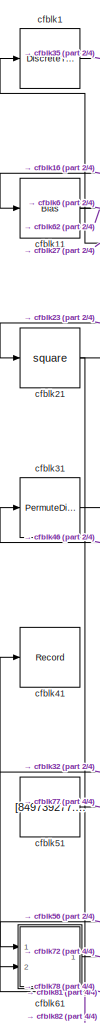
[diagram: root canvas - part 1/4, left side, full height]
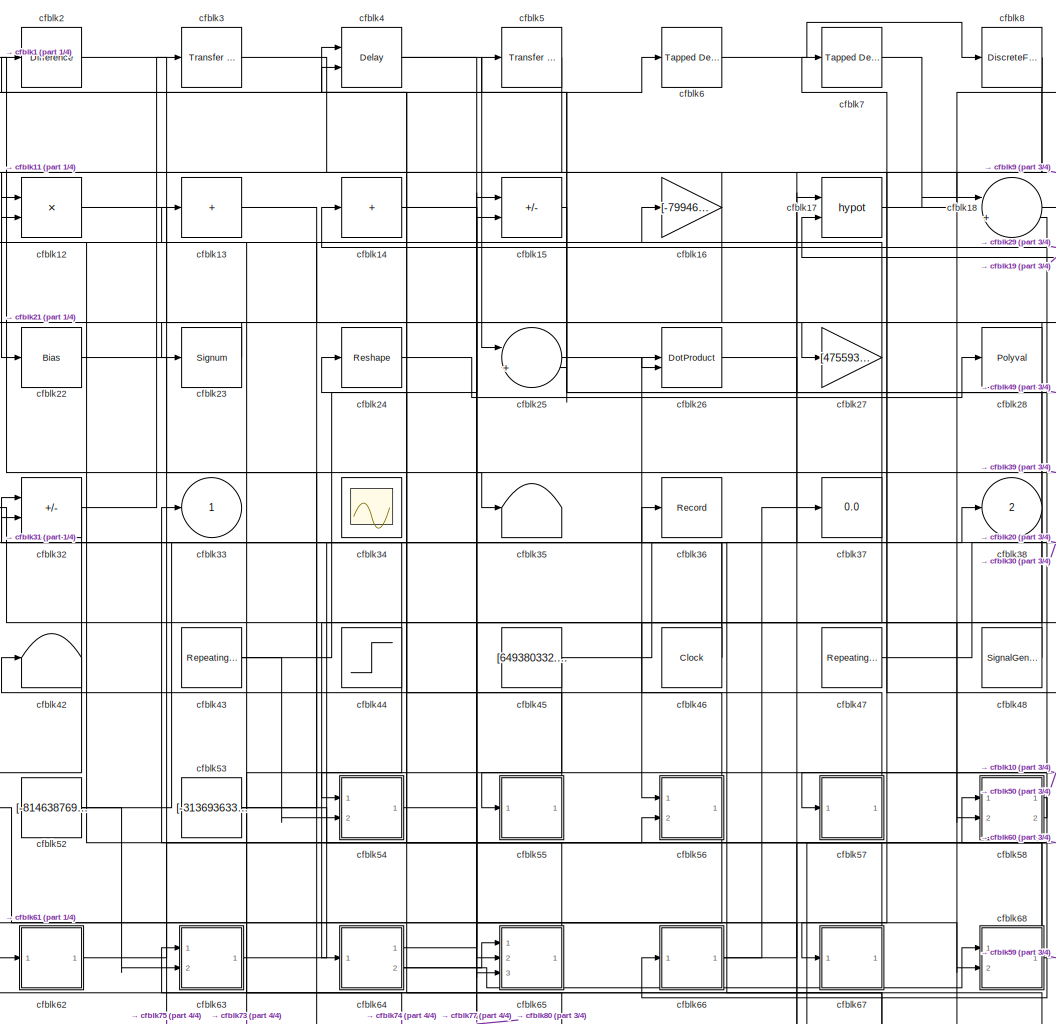
[diagram: root canvas - part 2/4, center side, full height]
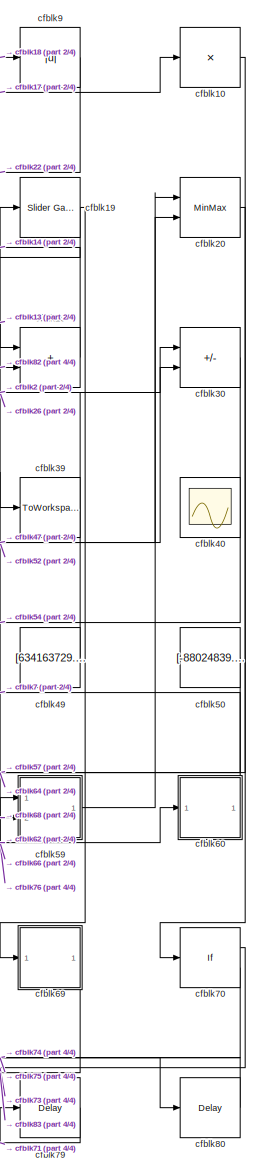
[diagram: root canvas - part 3/4, right side, full height]
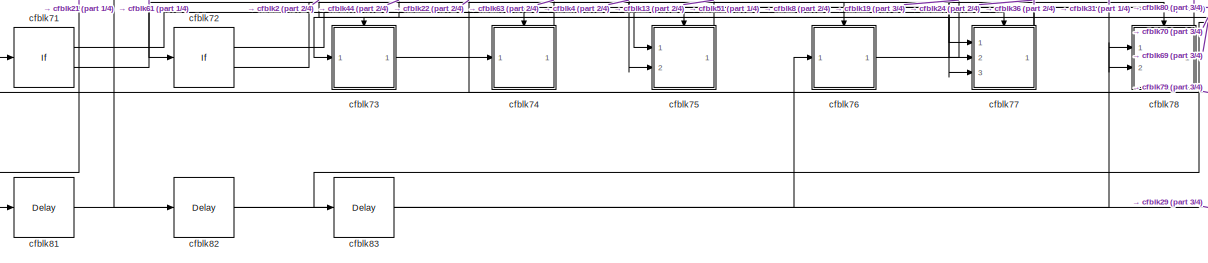
[diagram: root canvas - part 4/4, full width, bottom band]
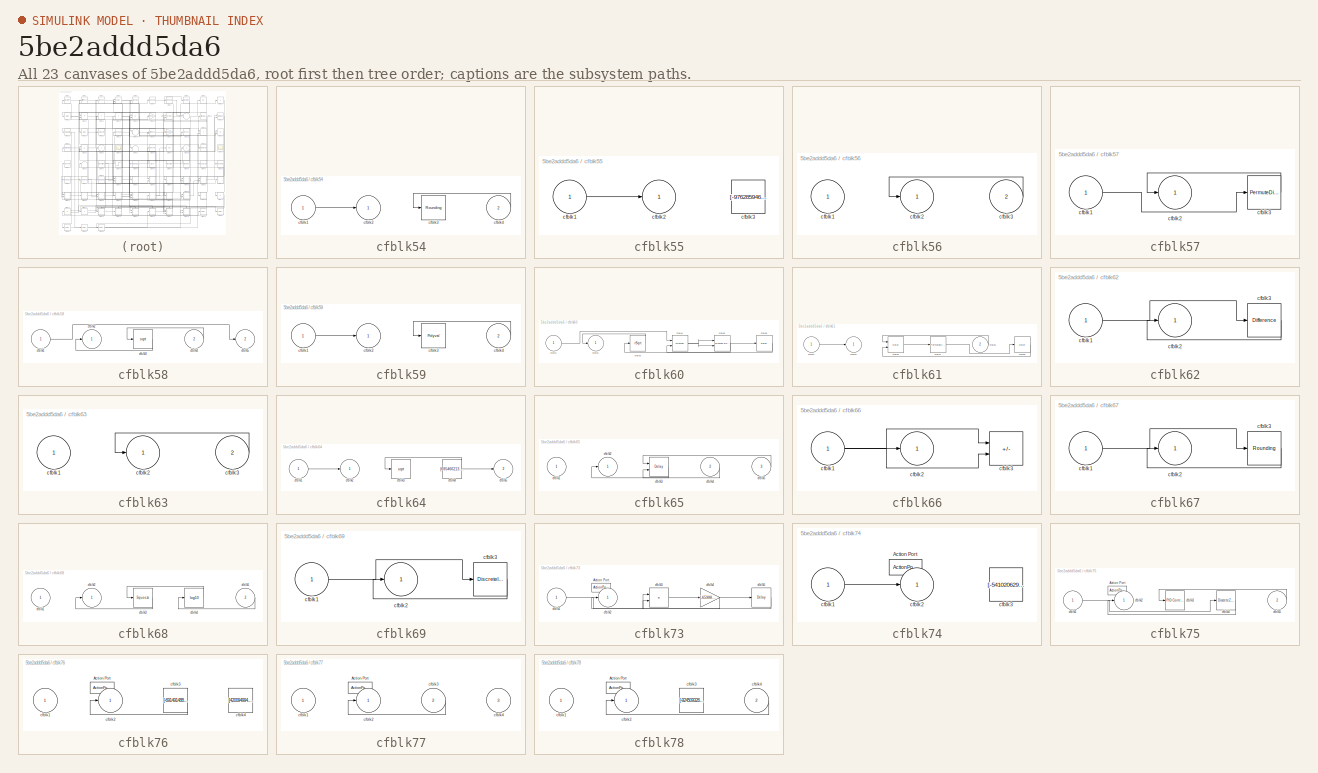
[diagram: thumbnail index - all 23 canvases of the model, root first then tree order]
MODEL slx_5be2addd5da6
KIND model
CONFIG AbsTol = auto
CONFIG EnableMultiTasking = off
CONFIG FixedStep = auto
CONFIG MaxStep = auto
CONFIG MinStep = auto
CONFIG RelTol = 1e-3
CONFIG SampleTimeConstraint = Unconstrained
CONFIG SolverName = VariableStepAuto
CONFIG StartTime = 0.0
CONFIG StopTime = 10.0
BLOCK [DiscreteTransferFcn] cfblk1
  InputPortMap = u0
  Ports = [1, 1]
  SampleTime = 1
BLOCK [Product] cfblk10
  Inputs = *
  Ports = [1, 1]
BLOCK [Bias] cfblk11
  Bias = [181795542.426369]
  SaturateOnIntegerOverflow = off
BLOCK [Product] cfblk12
  Inputs = **
  Ports = [2, 1]
BLOCK [Sum] cfblk13
  IconShape = rectangular
  Inputs = +
  Ports = [1, 1]
BLOCK [Sum] cfblk14
  IconShape = rectangular
  Inputs = +
  Ports = [1, 1]
BLOCK [Sum] cfblk15
  IconShape = rectangular
  Inputs = --
  Ports = [2, 1]
BLOCK [Gain] cfblk16
  Gain = [-799465220.667047]
BLOCK [Math] cfblk17
  Operator = hypot
  Ports = [2, 1]
BLOCK [Sum] cfblk18
  Inputs = |++
  Ports = [2, 1]
BLOCK [Reference] cfblk19  REF=simulink/Math
Operations/Slider
Gain
  Ports = [1, 1]
  SourceBlock = simulink/Math\nOperations/Slider\nGain
  SourceProductBaseCode = SL
  SourceType = Slider Gain
BLOCK [Reference] cfblk2  REF=simulink/Discrete/Difference
  Ports = [1, 1]
  SourceBlock = simulink/Discrete/Difference
  SourceProductBaseCode = SL
  SourceType = Difference
BLOCK [MinMax] cfblk20
  Function = max
  Inputs = 2
  Ports = [2, 1]
BLOCK [Math] cfblk21
  Operator = square
  Ports = [1, 1]
BLOCK [Bias] cfblk22
  Bias = [963864402.264012]
  SaturateOnIntegerOverflow = off
BLOCK [Signum] cfblk23
BLOCK [Reshape] cfblk24
  Ports = [1, 1]
BLOCK [Sum] cfblk25
  Inputs = |++
  Ports = [2, 1]
BLOCK [DotProduct] cfblk26
  OutDataTypeStr = Inherit: Inherit via internal rule
BLOCK [Gain] cfblk27
  Gain = [475593139.416819]
BLOCK [Polyval] cfblk28
  Coefs = [ +2.081618890e-019, -1.441693666e-014, +4.719686976e-010, -8.536869453e-006, +1.621573104e-001, -8.087801117e+001 ]
BLOCK [Sum] cfblk29
  IconShape = rectangular
  Ports = [2, 1]
BLOCK [Reference] cfblk3  REF=simulink/Discrete/Transfer Fcn
First Order
  Ports = [1, 1]
  SourceBlock = simulink/Discrete/Transfer Fcn\nFirst Order
  SourceProductBaseCode = SL
  SourceType = First Order Transfer Fcn
BLOCK [Sum] cfblk30
  IconShape = rectangular
  Inputs = +-
  Ports = [2, 1]
BLOCK [PermuteDimensions] cfblk31
BLOCK [Sum] cfblk32
  IconShape = rectangular
  Inputs = +-
  Ports = [2, 1]
BLOCK [Outport] cfblk33
BLOCK [Scope] cfblk34
  Floating = on
  NumInputPorts = 1
  Ports = []
BLOCK [Terminator] cfblk35
BLOCK [Record] cfblk36
  FileSettingsInternal = {"entries":[{"content":{"excelSettings":{"content":{},"type":"Streamout.ExcelSettings"}},"type":"Streamout.FileSettingStorage","uuid":"2fe2889c-804a-4648-bb93-64e9664d122d"}],"packageUris":["http://schema.mathworks.com/mf0/streamout_blocks/R2020a"],"version":"1.0"}
  Ports = [1]
  SignalsInternal = {"entries":[{"content":{"signals":[{"content":{"blockPath":["sampleModel179/cfblk36"],"channel":[],"dimensions":[1],"domain":"sampleModel179/cfblk36","lineColor":"#ff13a6","plots":[1],"port":1,"sid":[""],"signalID":6697,"signalName":"cfblk77"},"type":"RecordBlkView.Signal","uuid":"7f344007-fab9-4968-983a-89d047d2587d"}]},"type":"RecordBlkView.InputSignals","uuid":"faf1bb9f-562f-42bd-8fab-4d369fa96...<+97ch>
  VisualizationBindings = {"sparklinesplugin":{"info":[{"bindingParametersList":[],"subplotID":1}]}}
BLOCK [Display] cfblk37
  Decimation = 1
  Ports = [1]
BLOCK [Outport] cfblk38
  Port = 2
BLOCK [ToWorkspace] cfblk39
  FixptAsFi = on
  MaxDataPoints = inf
  Ports = [1]
  SampleTime = -1
  SaveFormat = Timeseries
  VariableName = gwrujfk
BLOCK [Delay] cfblk4
  DelayLengthSource = Input port
  InputPortMap = u0,p1
  Ports = [2, 1]
  SampleTime = 1
BLOCK [Scope] cfblk40
  Floating = on
  NumInputPorts = 1
  Ports = []
BLOCK [Record] cfblk41
  FileSettingsInternal = {"entries":[{"content":{"excelSettings":{"content":{},"type":"Streamout.ExcelSettings"}},"type":"Streamout.FileSettingStorage","uuid":"5e3a910e-3505-4596-9b85-21d1496942e4"}],"packageUris":["http://schema.mathworks.com/mf0/streamout_blocks/R2020a"],"version":"1.0"}
  Ports = [1]
  SignalsInternal = {"entries":[{"content":{"signals":[{"content":{"blockPath":["sampleModel179/cfblk41"],"channel":[],"dimensions":[1,1],"domain":"sampleModel179/cfblk41","lineColor":"#fe330a","plots":[1],"port":1,"sid":[""],"signalID":6701,"signalName":"cfblk78"},"type":"RecordBlkView.Signal","uuid":"4bde34a3-be9b-4ccf-99bc-c358328e6481"}]},"type":"RecordBlkView.InputSignals","uuid":"60437584-c26f-4991-91f2-ff35db6...<+99ch>
  VisualizationBindings = {"sparklinesplugin":{"info":[{"bindingParametersList":[],"subplotID":1}]}}
BLOCK [Terminator] cfblk42
BLOCK [Reference] cfblk43  REF=simulink/Sources/Repeating
Sequence
  Ports = [0, 1]
  SourceBlock = simulink/Sources/Repeating\nSequence
  SourceProductBaseCode = SL
  SourceType = Repeating table
BLOCK [Step] cfblk44
  After = [399744739.376699]
  Before = [50738360.582872]
  SampleTime = 0
  Time = [32.000000]
BLOCK [Constant] cfblk45
  SampleTime = 1
  Value = [649380332.512729]
BLOCK [Clock] cfblk46
BLOCK [Reference] cfblk47  REF=simulink/Sources/Repeating
Sequence
Interpolated
  Ports = [0, 1]
  SourceBlock = simulink/Sources/Repeating\nSequence\nInterpolated
  SourceProductBaseCode = SL
  SourceType = Repeating Sequence Interpolated
BLOCK [SignalGenerator] cfblk48
  Amplitude = [-944307267.684464]
  Ports = [0, 1]
  Units = rad/sec
  WaveForm = sawtooth
BLOCK [Constant] cfblk49
  SampleTime = 1
  Value = [634163729.745632]
BLOCK [Reference] cfblk5  REF=simulink/Discrete/Transfer Fcn
Lead or Lag
  Ports = [1, 1]
  SourceBlock = simulink/Discrete/Transfer Fcn\nLead or Lag
  SourceProductBaseCode = SL
  SourceType = Lead or Lag Compensator
BLOCK [Constant] cfblk50
  SampleTime = 1
  Value = [-88024839.080459]
BLOCK [Constant] cfblk51
  SampleTime = 1
  Value = [849739277.065495]
BLOCK [Constant] cfblk52
  SampleTime = 1
  Value = [-814638769.633098]
BLOCK [Constant] cfblk53
  SampleTime = 1
  Value = [-313693633.993269]
BLOCK [SubSystem] cfblk54
  Ports = [2, 1]
  RequestExecContextInheritance = off
BLOCK [Inport] cfblk54/cfblk1
BLOCK [Outport] cfblk54/cfblk2
BLOCK [Rounding] cfblk54/cfblk3
BLOCK [Inport] cfblk54/cfblk4
  Port = 2
BLOCK [SubSystem] cfblk55
  Ports = [1, 1]
  RequestExecContextInheritance = off
BLOCK [Inport] cfblk55/cfblk1
BLOCK [Outport] cfblk55/cfblk2
BLOCK [Constant] cfblk55/cfblk3
  SampleTime = 1
  Value = [-976285946.988395]
BLOCK [SubSystem] cfblk56
  Ports = [2, 1]
  RequestExecContextInheritance = off
BLOCK [Inport] cfblk56/cfblk1
BLOCK [Outport] cfblk56/cfblk2
BLOCK [Inport] cfblk56/cfblk3
  Port = 2
BLOCK [SubSystem] cfblk57
  Ports = [1, 1]
  RequestExecContextInheritance = off
BLOCK [Inport] cfblk57/cfblk1
BLOCK [Outport] cfblk57/cfblk2
BLOCK [PermuteDimensions] cfblk57/cfblk3
BLOCK [SubSystem] cfblk58
  Ports = [2, 2]
  RequestExecContextInheritance = off
BLOCK [Inport] cfblk58/cfblk1
BLOCK [Outport] cfblk58/cfblk2
BLOCK [Sqrt] cfblk58/cfblk3
BLOCK [Inport] cfblk58/cfblk4
  Port = 2
BLOCK [Outport] cfblk58/cfblk5
  Port = 2
BLOCK [SubSystem] cfblk59
  Ports = [2, 1]
  RequestExecContextInheritance = off
BLOCK [Inport] cfblk59/cfblk1
BLOCK [Outport] cfblk59/cfblk2
BLOCK [Polyval] cfblk59/cfblk3
  Coefs = [ +2.081618890e-019, -1.441693666e-014, +4.719686976e-010, -8.536869453e-006, +1.621573104e-001, -8.087801117e+001 ]
BLOCK [Inport] cfblk59/cfblk4
  Port = 2
BLOCK [Reference] cfblk6  REF=simulink/Discrete/Tapped Delay
  Ports = [1, 1]
  SourceBlock = simulink/Discrete/Tapped Delay
  SourceProductBaseCode = SL
  SourceType = Tapped Delay Line
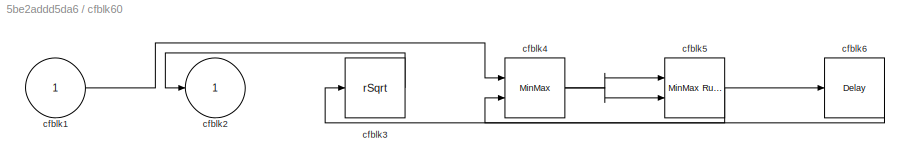
BLOCK [SubSystem] cfblk60
  Ports = [1, 1]
  RequestExecContextInheritance = off
BLOCK [Inport] cfblk60/cfblk1
BLOCK [Outport] cfblk60/cfblk2
BLOCK [Sqrt] cfblk60/cfblk3
  AlgorithmType = Newton-Raphson
  Operator = rSqrt
BLOCK [MinMax] cfblk60/cfblk4
  Inputs = 2
  Ports = [2, 1]
BLOCK [Reference] cfblk60/cfblk5  REF=simulink/Math
Operations/MinMax
Running
Resettable
  Ports = [2, 1]
  SourceBlock = simulink/Math\nOperations/MinMax\nRunning\nResettable
  SourceProductBaseCode = SL
  SourceType = MinMax Running Resettable
BLOCK [Delay] cfblk60/cfblk6
  InputPortMap = u0
  Ports = [1, 1]
  SampleTime = 1
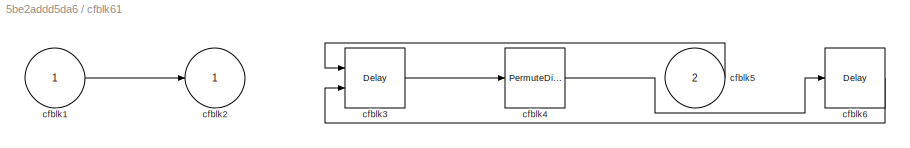
BLOCK [SubSystem] cfblk61
  Ports = [2, 1]
  RequestExecContextInheritance = off
BLOCK [Inport] cfblk61/cfblk1
BLOCK [Outport] cfblk61/cfblk2
BLOCK [Delay] cfblk61/cfblk3
  DelayLengthSource = Input port
  InputPortMap = u0,p1
  Ports = [2, 1]
  SampleTime = 1
BLOCK [PermuteDimensions] cfblk61/cfblk4
BLOCK [Inport] cfblk61/cfblk5
  Port = 2
BLOCK [Delay] cfblk61/cfblk6
  InputPortMap = u0
  Ports = [1, 1]
  SampleTime = 1
BLOCK [SubSystem] cfblk62
  Ports = [1, 1]
  RequestExecContextInheritance = off
BLOCK [Inport] cfblk62/cfblk1
BLOCK [Outport] cfblk62/cfblk2
BLOCK [Reference] cfblk62/cfblk3  REF=simulink/Discrete/Difference
  Ports = [1, 1]
  SourceBlock = simulink/Discrete/Difference
  SourceProductBaseCode = SL
  SourceType = Difference
BLOCK [SubSystem] cfblk63
  Ports = [2, 1]
  RequestExecContextInheritance = off
BLOCK [Inport] cfblk63/cfblk1
BLOCK [Outport] cfblk63/cfblk2
BLOCK [Inport] cfblk63/cfblk3
  Port = 2
BLOCK [SubSystem] cfblk64
  Ports = [1, 2]
  RequestExecContextInheritance = off
BLOCK [Inport] cfblk64/cfblk1
BLOCK [Outport] cfblk64/cfblk2
BLOCK [Sqrt] cfblk64/cfblk3
BLOCK [Constant] cfblk64/cfblk4
  SampleTime = 1
  Value = [695466213.768835]
BLOCK [Outport] cfblk64/cfblk5
  Port = 2
BLOCK [SubSystem] cfblk65
  Ports = [3, 1]
  RequestExecContextInheritance = off
BLOCK [Inport] cfblk65/cfblk1
BLOCK [Outport] cfblk65/cfblk2
BLOCK [Delay] cfblk65/cfblk3
  InputPortMap = u0,e6
  Ports = [2, 1]
  SampleTime = 1
  ShowEnablePort = on
BLOCK [Inport] cfblk65/cfblk4
  Port = 2
BLOCK [Inport] cfblk65/cfblk5
  Port = 3
BLOCK [SubSystem] cfblk66
  Ports = [1, 1]
  RequestExecContextInheritance = off
BLOCK [Inport] cfblk66/cfblk1
BLOCK [Outport] cfblk66/cfblk2
BLOCK [Sum] cfblk66/cfblk3
  IconShape = rectangular
  Inputs = +-
  Ports = [2, 1]
BLOCK [SubSystem] cfblk67
  Ports = [1, 1]
  RequestExecContextInheritance = off
BLOCK [Inport] cfblk67/cfblk1
BLOCK [Outport] cfblk67/cfblk2
BLOCK [Rounding] cfblk67/cfblk3
BLOCK [SubSystem] cfblk68
  Ports = [2, 1]
  RequestExecContextInheritance = off
BLOCK [Inport] cfblk68/cfblk1
BLOCK [Outport] cfblk68/cfblk2
BLOCK [Squeeze] cfblk68/cfblk3
BLOCK [Math] cfblk68/cfblk4
  Operator = log10
  Ports = [1, 1]
BLOCK [Inport] cfblk68/cfblk5
  Port = 2
BLOCK [SubSystem] cfblk69
  Ports = [1, 1]
  RequestExecContextInheritance = off
BLOCK [Inport] cfblk69/cfblk1
BLOCK [Outport] cfblk69/cfblk2
BLOCK [DiscreteIntegrator] cfblk69/cfblk3
  ICPrevOutput = DiscIntNeverNeededParam
  ICPrevScaledInput = DiscIntNeverNeededParam
  InitialConditionSetting = Auto
  Ports = [1, 1]
BLOCK [Reference] cfblk7  REF=simulink/Discrete/Tapped Delay
  Ports = [1, 1]
  SourceBlock = simulink/Discrete/Tapped Delay
  SourceProductBaseCode = SL
  SourceType = Tapped Delay Line
BLOCK [If] cfblk70
  IfExpression = u1 >= 0
  Ports = [1, 2]
  SampleTime = 1
BLOCK [If] cfblk71
  IfExpression = u1 >= 0
  Ports = [1, 2]
  SampleTime = 1
BLOCK [If] cfblk72
  IfExpression = u1 >= 0
  Ports = [1, 2]
  SampleTime = 1
BLOCK [SubSystem] cfblk73
  Ports = [1, 1, 0, 0, 0, 0, 0, 1]
  RequestExecContextInheritance = off
  TreatAsAtomicUnit = on
BLOCK [ActionPort] cfblk73/Action Port
  ActionPortLabel = if(u1 >= 0)
BLOCK [Inport] cfblk73/cfblk1
BLOCK [Outport] cfblk73/cfblk2
BLOCK [Product] cfblk73/cfblk3
  Ports = [2, 1]
BLOCK [Gain] cfblk73/cfblk4
  Gain = [-659885936.781840]
BLOCK [Delay] cfblk73/cfblk5
  InputPortMap = u0
  Ports = [1, 1]
BLOCK [SubSystem] cfblk74
  Ports = [1, 1, 0, 0, 0, 0, 0, 1]
  RequestExecContextInheritance = off
  TreatAsAtomicUnit = on
BLOCK [ActionPort] cfblk74/Action Port
  ActionPortLabel = else
BLOCK [Inport] cfblk74/cfblk1
BLOCK [Outport] cfblk74/cfblk2
BLOCK [Constant] cfblk74/cfblk3
  SampleTime = 1
  Value = [-541020629.266397]
BLOCK [SubSystem] cfblk75
  Ports = [2, 1, 0, 0, 0, 0, 0, 1]
  RequestExecContextInheritance = off
  TreatAsAtomicUnit = on
BLOCK [ActionPort] cfblk75/Action Port
  ActionPortLabel = if(u1 >= 0)
BLOCK [Inport] cfblk75/cfblk1
BLOCK [Outport] cfblk75/cfblk2
BLOCK [Reference] cfblk75/cfblk3  REF=slpidlib/PID Controller
  Ports = [1, 1]
  SourceBlock = slpidlib/PID Controller
  SourceProductBaseCode = SL
  SourceType = PID 1dof
BLOCK [DiscreteZeroPole] cfblk75/cfblk4
  Gain = 1
  Poles = [0 0.5]
  SampleTime = -1
BLOCK [Inport] cfblk75/cfblk5
  Port = 2
BLOCK [SubSystem] cfblk76
  Ports = [1, 1, 0, 0, 0, 0, 0, 1]
  RequestExecContextInheritance = off
  TreatAsAtomicUnit = on
BLOCK [ActionPort] cfblk76/Action Port
  ActionPortLabel = else
BLOCK [Inport] cfblk76/cfblk1
BLOCK [Outport] cfblk76/cfblk2
BLOCK [Constant] cfblk76/cfblk3
  SampleTime = 1
  Value = [-691491488.937067]
BLOCK [Constant] cfblk76/cfblk4
  SampleTime = 1
  Value = [420094994.810279]
BLOCK [SubSystem] cfblk77
  Ports = [3, 1, 0, 0, 0, 0, 0, 1]
  RequestExecContextInheritance = off
  TreatAsAtomicUnit = on
BLOCK [ActionPort] cfblk77/Action Port
  ActionPortLabel = if(u1 >= 0)
BLOCK [Inport] cfblk77/cfblk1
BLOCK [Outport] cfblk77/cfblk2
BLOCK [Inport] cfblk77/cfblk3
  Port = 2
BLOCK [Inport] cfblk77/cfblk4
  Port = 3
BLOCK [SubSystem] cfblk78
  Ports = [2, 1, 0, 0, 0, 0, 0, 1]
  RequestExecContextInheritance = off
  TreatAsAtomicUnit = on
BLOCK [ActionPort] cfblk78/Action Port
  ActionPortLabel = else
BLOCK [Inport] cfblk78/cfblk1
BLOCK [Outport] cfblk78/cfblk2
BLOCK [Constant] cfblk78/cfblk3
  SampleTime = 1
  Value = [-924509326.681808]
BLOCK [Inport] cfblk78/cfblk4
  Port = 2
BLOCK [Delay] cfblk79
  InputPortMap = u0
  Ports = [1, 1]
  SampleTime = 1
BLOCK [DiscreteFilter] cfblk8
  InputPortMap = u0
  Ports = [1, 1]
  SampleTime = 1
BLOCK [Delay] cfblk80
  InputPortMap = u0
  Ports = [1, 1]
  SampleTime = 1
BLOCK [Delay] cfblk81
  InputPortMap = u0
  Ports = [1, 1]
  SampleTime = 1
BLOCK [Delay] cfblk82
  InputPortMap = u0
  Ports = [1, 1]
  SampleTime = 1
BLOCK [Delay] cfblk83
  InputPortMap = u0
  Ports = [1, 1]
  SampleTime = 1
BLOCK [Abs] cfblk9
  SaturateOnIntegerOverflow = off
LINE cfblk10:1 -> cfblk57:1
NET cfblk11:1 -> cfblk62:1, cfblk6:1
LINE cfblk12:1 -> cfblk27:1
LINE cfblk13:1 -> cfblk29:1
NET cfblk14:1 -> cfblk39:1, cfblk68:2
LINE cfblk15:1 -> cfblk25:2
NET cfblk16:1 -> cfblk11:1, cfblk65:3
LINE cfblk17:1 -> cfblk10:1
LINE cfblk18:1 -> cfblk9:1
NET cfblk19:1 -> cfblk17:2, cfblk69:1
LINE cfblk1:1 -> cfblk35:1
LINE cfblk20:1 -> cfblk70:1
NET cfblk21:1 -> cfblk81:1, cfblk82:1
LINE cfblk22:1 -> cfblk74:1
LINE cfblk23:1 -> cfblk21:1
LINE cfblk24:1 -> cfblk28:1
LINE cfblk25:1 -> cfblk26:2
LINE cfblk26:1 -> cfblk30:2
NET cfblk27:1 -> cfblk1:1, cfblk56:1
NET cfblk28:1 -> cfblk23:1, cfblk65:2
LINE cfblk29:1 -> cfblk14:1
LINE cfblk2:1 -> cfblk75:2
LINE cfblk30:1 -> cfblk54:1
LINE cfblk31:1 -> cfblk78:2
NET cfblk32:1 -> cfblk3:1, cfblk61:2
LINE cfblk3:1 -> cfblk58:2
NET cfblk43:1 -> cfblk15:1, cfblk54:2
NET cfblk44:1 -> cfblk32:1, cfblk73:1
NET cfblk45:1 -> cfblk17:1, cfblk55:1
NET cfblk46:1 -> cfblk31:1, cfblk32:2
LINE cfblk47:1 -> cfblk20:1
LINE cfblk48:1 -> cfblk5:1
LINE cfblk49:1 -> cfblk2:1
NET cfblk4:1 -> cfblk25:1, cfblk77:2
LINE cfblk50:1 -> cfblk64:1
LINE cfblk51:1 -> cfblk77:1
NET cfblk52:1 -> cfblk30:1, cfblk63:2
NET cfblk53:1 -> cfblk16:1, cfblk56:2
LINE cfblk54/cfblk1:1 -> cfblk54/cfblk2:1
LINE cfblk54/cfblk4:1 -> cfblk54/cfblk3:1
LINE cfblk54:1 -> cfblk80:1
LINE cfblk55/cfblk1:1 -> cfblk55/cfblk2:1
LINE cfblk55:1 -> cfblk42:1
LINE cfblk56/cfblk3:1 -> cfblk56/cfblk2:1
NET cfblk56:1 -> cfblk26:1, cfblk61:1
LINE cfblk57/cfblk1:1 -> cfblk57/cfblk3:1
LINE cfblk57/cfblk3:1 -> cfblk57/cfblk2:1
LINE cfblk57:1 -> cfblk4:2
LINE cfblk58/cfblk1:1 -> cfblk58/cfblk5:1
LINE cfblk58/cfblk3:1 -> cfblk58/cfblk2:1
LINE cfblk58/cfblk4:1 -> cfblk58/cfblk3:1
LINE cfblk58:1 -> cfblk66:1
LINE cfblk58:2 -> cfblk18:2
LINE cfblk59/cfblk1:1 -> cfblk59/cfblk2:1
LINE cfblk59/cfblk4:1 -> cfblk59/cfblk3:1
LINE cfblk59:1 -> cfblk20:2
LINE cfblk5:1 -> cfblk12:1
LINE cfblk60/cfblk1:1 -> cfblk60/cfblk4:1
LINE cfblk60/cfblk3:1 -> cfblk60/cfblk2:1
NET cfblk60/cfblk4:1 -> cfblk60/cfblk5:1, cfblk60/cfblk5:2
NET cfblk60/cfblk5:1 -> cfblk60/cfblk3:1, cfblk60/cfblk6:1
LINE cfblk60/cfblk6:1 -> cfblk60/cfblk4:2
LINE cfblk60:1 -> cfblk7:1
LINE cfblk61/cfblk1:1 -> cfblk61/cfblk2:1
LINE cfblk61/cfblk3:1 -> cfblk61/cfblk4:1
LINE cfblk61/cfblk4:1 -> cfblk61/cfblk6:1
LINE cfblk61/cfblk5:1 -> cfblk61/cfblk3:1
LINE cfblk61/cfblk6:1 -> cfblk61/cfblk3:2
LINE cfblk61:1 -> cfblk72:1
LINE cfblk62/cfblk1:1 -> cfblk62/cfblk3:1
LINE cfblk62/cfblk3:1 -> cfblk62/cfblk2:1
LINE cfblk62:1 -> cfblk60:1
LINE cfblk63/cfblk3:1 -> cfblk63/cfblk2:1
LINE cfblk63:1 -> cfblk38:1
LINE cfblk64/cfblk1:1 -> cfblk64/cfblk2:1
NET cfblk64/cfblk4:1 -> cfblk64/cfblk3:1, cfblk64/cfblk5:1
LINE cfblk64:1 -> cfblk15:2
NET cfblk64:2 -> cfblk65:1, cfblk68:1
LINE cfblk65/cfblk3:1 -> cfblk65/cfblk2:1
LINE cfblk65/cfblk4:1 -> cfblk65/cfblk3:2
LINE cfblk65/cfblk5:1 -> cfblk65/cfblk3:1
LINE cfblk65:1 -> cfblk33:1
NET cfblk66/cfblk1:1 -> cfblk66/cfblk2:1, cfblk66/cfblk3:1, cfblk66/cfblk3:2
NET cfblk66:1 -> cfblk37:1, cfblk59:1
LINE cfblk67/cfblk1:1 -> cfblk67/cfblk3:1
LINE cfblk67/cfblk3:1 -> cfblk67/cfblk2:1
LINE cfblk67:1 -> cfblk4:1
LINE cfblk68/cfblk3:1 -> cfblk68/cfblk2:1
LINE cfblk68/cfblk4:1 -> cfblk68/cfblk3:1
LINE cfblk68/cfblk5:1 -> cfblk68/cfblk4:1
NET cfblk68:1 -> cfblk12:2, cfblk58:1, cfblk59:2
LINE cfblk69/cfblk1:1 -> cfblk69/cfblk3:1
LINE cfblk69/cfblk3:1 -> cfblk69/cfblk2:1
LINE cfblk69:1 -> cfblk83:1
LINE cfblk6:1 -> cfblk8:1
LINE cfblk70:1 -> cfblk73:ifaction
LINE cfblk70:2 -> cfblk74:ifaction
LINE cfblk71:1 -> cfblk75:ifaction
LINE cfblk71:2 -> cfblk76:ifaction
LINE cfblk72:1 -> cfblk77:ifaction
LINE cfblk72:2 -> cfblk78:ifaction
LINE cfblk73/cfblk1:1 -> cfblk73/cfblk3:1
LINE cfblk73/cfblk3:1 -> cfblk73/cfblk4:1
NET cfblk73/cfblk4:1 -> cfblk73/cfblk2:1, cfblk73/cfblk5:1
LINE cfblk73/cfblk5:1 -> cfblk73/cfblk3:2
LINE cfblk73:1 -> cfblk79:1
LINE cfblk74/cfblk1:1 -> cfblk74/cfblk2:1
LINE cfblk74:1 -> cfblk63:1
LINE cfblk75/cfblk1:1 -> cfblk75/cfblk4:1
LINE cfblk75/cfblk4:1 -> cfblk75/cfblk2:1
LINE cfblk75/cfblk5:1 -> cfblk75/cfblk3:1
LINE cfblk75:1 -> cfblk13:1
LINE cfblk76/cfblk3:1 -> cfblk76/cfblk2:1
LINE cfblk76:1 -> cfblk19:1
LINE cfblk77/cfblk3:1 -> cfblk77/cfblk2:1
NET cfblk77:1 -> cfblk24:1, cfblk36:1
LINE cfblk78/cfblk4:1 -> cfblk78/cfblk2:1
LINE cfblk78:1 -> cfblk41:1
LINE cfblk79:1 -> cfblk71:1
LINE cfblk7:1 -> cfblk18:1
LINE cfblk80:1 -> cfblk75:1
LINE cfblk81:1 -> cfblk78:1
LINE cfblk82:1 -> cfblk29:2
LINE cfblk83:1 -> cfblk76:1
NET cfblk8:1 -> cfblk67:1, cfblk77:3
LINE cfblk9:1 -> cfblk22:1
note: NET lines group one-source signal fan-out (src -> all destinations, sorted); 1:1 wires keep LINE
